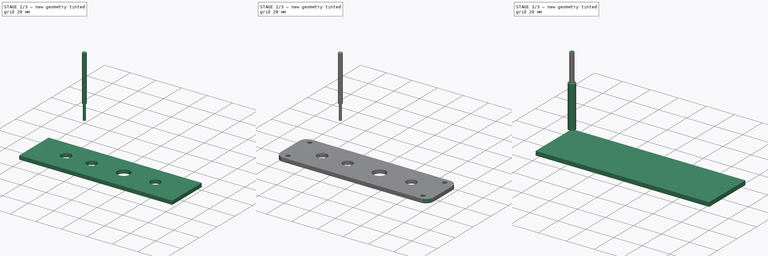
[diagram: build sequence overview — one tinted view per stage of 3, left to right]
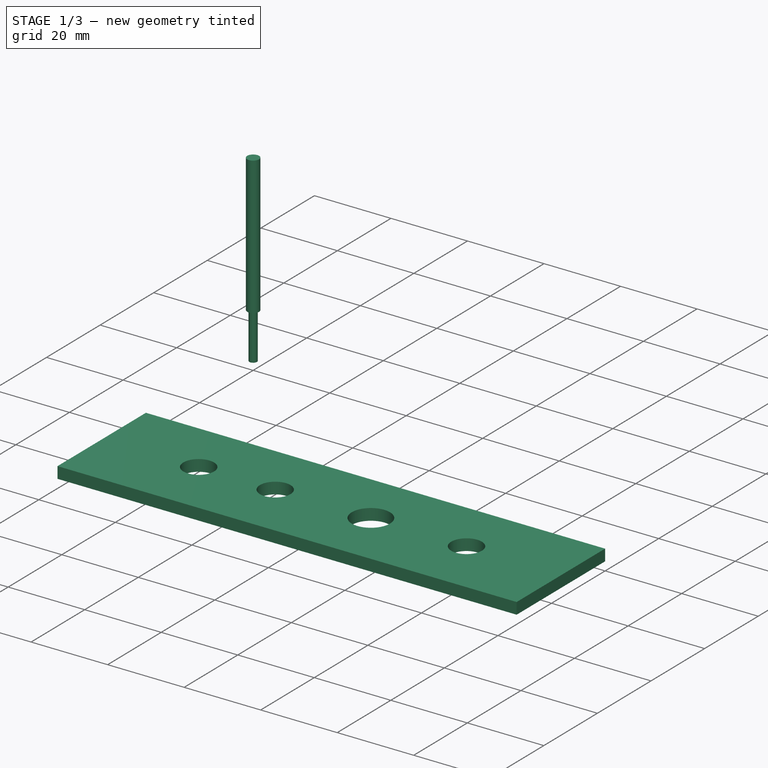
[diagram: stage 1 of 3 — iso view after this stage's code; geometry added in this stage tinted green]
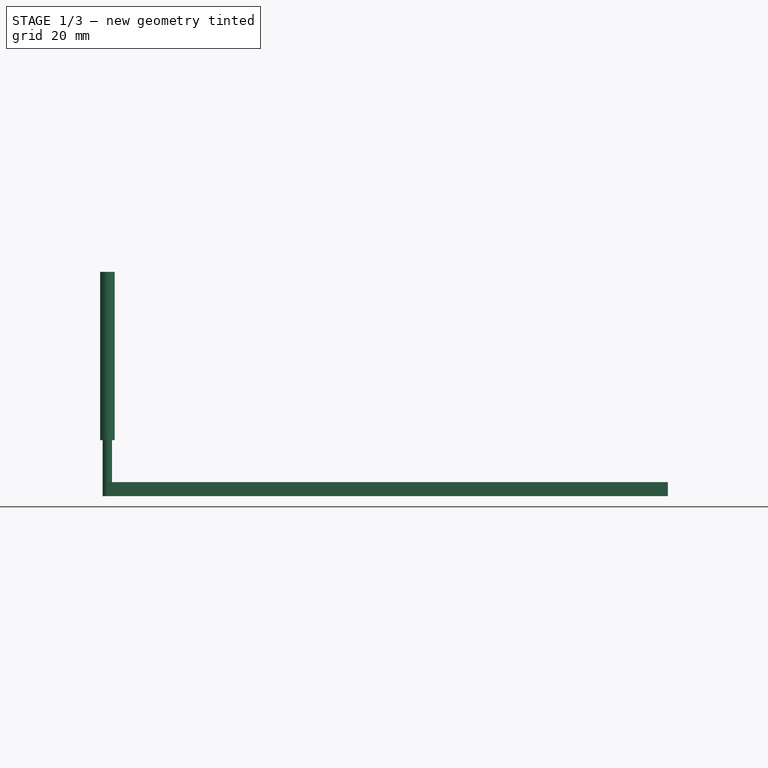
[diagram: stage 1 of 3 — front view after this stage's code; geometry added in this stage tinted green]
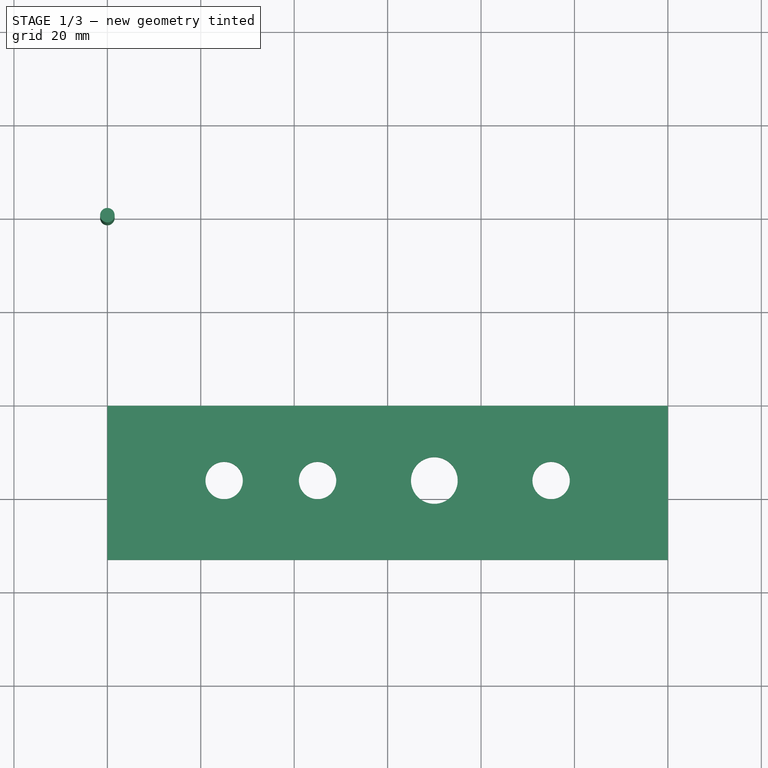
[diagram: stage 1 of 3 — top view after this stage's code; geometry added in this stage tinted green]
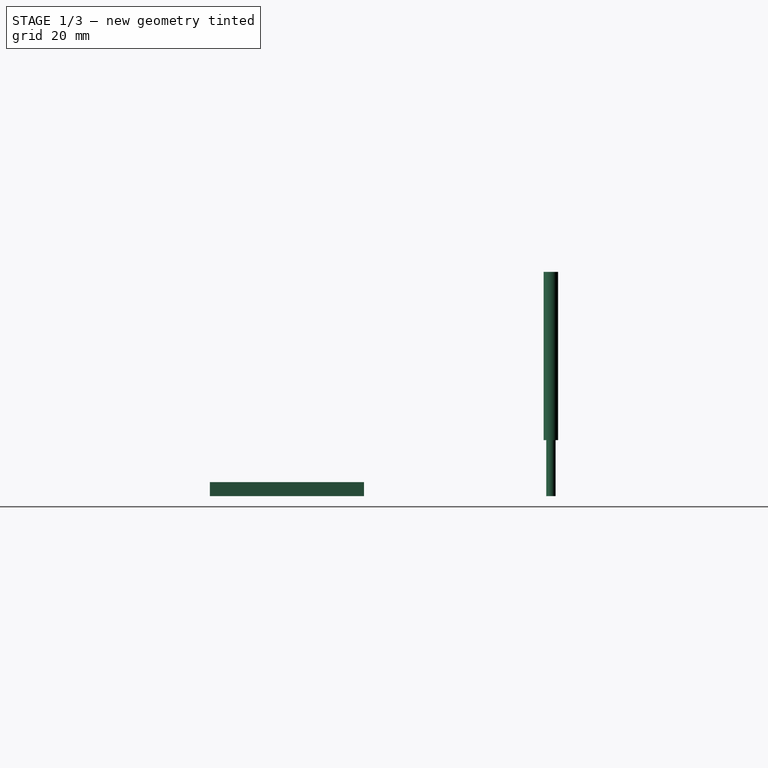
[diagram: stage 1 of 3 — right view after this stage's code; geometry added in this stage tinted green]
FCSTD DOCUMENT  (FreeCAD 0.21R33771 (Git))
Label: IO Platw
License: All rights reserved
LicenseURL: http://en.wikipedia.org/wiki/All_rights_reserved
objects: Path::FeaturePython×5, Part::FeaturePython×4, Sketcher::SketchObject×3, App::DocumentObjectGroup×3, PartDesign::Pocket×2, PartDesign::Pad×1, PartDesign::Fillet×1, PartDesign::Body×1, App::FeaturePython×1
note: 17 computed .brp shape members not serialized (recipe doc carries the construction recipe); baked Part::Feature solids carry a one-line shape summary decoded from their .brp

FEATURE [Sketcher::SketchObject] Sketch
  FullyConstrained = false
  MapMode = 5
  Support = -> [XY_Plane]
  sketch-geometry (4):
    g0: LineSegment StartX=0 StartY=-73.0154 StartZ=0 EndX=120 EndY=-73.0154 EndZ=0
    g1: LineSegment StartX=120 StartY=-73.0154 StartZ=0 EndX=120 EndY=-40.0154 EndZ=0
    g2: LineSegment StartX=120 StartY=-40.0154 StartZ=0 EndX=0 EndY=-40.0154 EndZ=0
    g3: LineSegment StartX=0 StartY=-40.0154 StartZ=0 EndX=0 EndY=-73.0154 EndZ=0
  constraints (11):
    c: Coincident(g0,g1)
    c: Coincident(g1,g2)
    c: Coincident(g2,g3)
    c: Coincident(g3,g0)
    c: Horizontal(g0)
    c: Horizontal(g2)
    c: Vertical(g1)
    c: Vertical(g3)
    c: PointOnObject(g0,g-2)
    c: DistanceX(g2,g2) = 120
    c: DistanceY(g3,g3) = 33
FEATURE [PartDesign::Pad] Pad
  Direction = (0,0,1)
  Length = 3
  Length2 = 10
  Profile = -> Sketch
  ReferenceAxis = -> Sketch [N_Axis]
  Type = 0
FEATURE [Sketcher::SketchObject] Sketch195  label="IO plate jack Holes002"
  FullyConstrained = false
  MapMode = 5
  Placement = pos=(0,0,3) rot=(0,0,1;0rad)
  Support = -> [Pad]
  sketch-geometry (18):
    g0: LineSegment StartX=0.000934 StartY=-56.02 StartZ=0 EndX=10.0009 EndY=-56.02 EndZ=0
    g1: LineSegment StartX=10.0009 StartY=-56.02 StartZ=0 EndX=20.0009 EndY=-56.02 EndZ=0
    g2: LineSegment StartX=30.0009 StartY=-56.02 StartZ=0 EndX=40.0009 EndY=-56.02 EndZ=0
    g3: LineSegment StartX=60.0334 StartY=-56.02 StartZ=0 EndX=50.0009 EndY=-56.02 EndZ=0
    g4: LineSegment StartX=80.0009 StartY=-56.02 StartZ=0 EndX=90.0009 EndY=-56.02 EndZ=0
    g5: LineSegment StartX=100.001 StartY=-56.02 StartZ=0 EndX=109.001 EndY=-56.02 EndZ=0
    g6: Circle CenterX=25.0009 CenterY=-56.02 CenterZ=0 NormalX=0 NormalY=0 NormalZ=1 AngleXU=0 Radius=4
    g7: Circle CenterX=45.0009 CenterY=-56.02 CenterZ=0 NormalX=0 NormalY=0 NormalZ=1 AngleXU=0 Radius=4
    g8: Circle CenterX=70.0009 CenterY=-56.02 CenterZ=0 NormalX=0 NormalY=0 NormalZ=1 AngleXU=0 Radius=5
    g9: Circle CenterX=95.0009 CenterY=-56.02 CenterZ=0 NormalX=0 NormalY=0 NormalZ=1 AngleXU=0 Radius=4
    g10: LineSegment StartX=100.001 StartY=-56.02 StartZ=0 EndX=95.0009 EndY=-56.02 EndZ=0
    g11: LineSegment StartX=95.0009 StartY=-56.02 StartZ=0 EndX=90.0009 EndY=-56.02 EndZ=0
    g12: LineSegment StartX=80.0009 StartY=-56.02 StartZ=0 EndX=70.0009 EndY=-56.02 EndZ=0
    g13: LineSegment StartX=70.0009 StartY=-56.02 StartZ=0 EndX=60.0334 EndY=-56.02 EndZ=0
    g14: LineSegment StartX=50.0009 StartY=-56.02 StartZ=0 EndX=45.0009 EndY=-56.02 EndZ=0
    g15: LineSegment StartX=45.0009 StartY=-56.02 StartZ=0 EndX=40.0009 EndY=-56.02 EndZ=0
    g16: LineSegment StartX=30.0009 StartY=-56.02 StartZ=0 EndX=25.0009 EndY=-56.02 EndZ=0
    g17: LineSegment StartX=25.0009 StartY=-56.02 StartZ=0 EndX=20.0009 EndY=-56.02 EndZ=0
  constraints (49):
    c: Horizontal(g0)
    c: Coincident(g1,g0)
    c: Horizontal(g1)
    c: Horizontal(g2)
    c: Horizontal(g3)
    c: Horizontal(g4)
    c: Horizontal(g5)
    c: Diameter(g9) = 8
    c: Diameter(g6) = 8
    c: Diameter(g7) = 8
    c: Diameter(g8) = 10
    c: DistanceX(g0,g0) = 10
    c: DistanceX(g1,g1) = 10
    c: DistanceX(g2,g2) = 10
    c: DistanceX(g3,g3) = 10.0325
    c: DistanceX(g4,g4) = 10
    c: DistanceX(g5,g5) = 9
    c: Coincident(g10,g5)
    c: Coincident(g10,g9)
    c: Horizontal(g10)
    c: Coincident(g11,g9)
    c: Coincident(g11,g4)
    c: Horizontal(g11)
    c: Coincident(g12,g4)
    c: Coincident(g12,g8)
    c: Horizontal(g12)
    c: Coincident(g13,g8)
    c: Coincident(g13,g3)
    c: Horizontal(g13)
    c: Coincident(g14,g3)
    c: Coincident(g14,g7)
    c: Horizontal(g14)
    c: Coincident(g15,g7)
    c: Coincident(g15,g2)
    c: Horizontal(g15)
    c: Coincident(g16,g2)
    c: Coincident(g16,g6)
    c: Horizontal(g16)
    c: Coincident(g17,g6)
    c: Coincident(g17,g1)
    c: Horizontal(g17)
    c: DistanceX(g17,g17) = 5
    c: DistanceX(g16,g16) = 5
    c: DistanceX(g15,g15) = 5
    c: DistanceX(g14,g14) = 5
    c: DistanceX(g13,g13) = 9.9675
    c: DistanceX(g12,g12) = 10
    c: DistanceX(g11,g11) = 5
    c: DistanceX(g10,g10) = 5
FEATURE [PartDesign::Pocket] Pocket
  BaseFeature = -> Pad
  Direction = (0,0,-1)
  Length = 5
  Length2 = 5
  Profile = -> Sketch195
  ReferenceAxis = -> Sketch195 [N_Axis]
  Type = 0
FEATURE [Part::FeaturePython] ToolBit001  label="2mm_Endmill"  # Path/CAM toolbit (typed FeaturePython)
  BitPropertyNames = Chipload | CuttingEdgeHeight | Diameter | Flutes | Length | Material | ShankDiameter | SpindleDirection
  BitShape = C:/Program Files/FreeCAD 0.21/Mod\Path\Tools\Shape\endmill.fcstd
  Chipload = 0
  CuttingEdgeHeight = 12
  Diameter = 2
  File = <userpath>/AppData/Roaming/FreeCAD/Macro/Bit/2mm_Endmill.fctb
  Flutes = 0
  Length = 48
  Material = 0
  ShankDiameter = 3.1
  ShapeName = endmill
  SpindleDirection = 0
FEATURE [Path::FeaturePython] _mm_Endmill  label="2mm_Endmill001"  # Path/CAM operation (typed FeaturePython)
  HorizFeed = 2.83333
  HorizRapid = 0
  SpindleDir = 0
  SpindleSpeed = 10000
  Tool = -> ToolBit001
  ToolNumber = 2
  VertFeed = 2
  VertRapid = 0
  expr: HorizRapid = SetupSheet.HorizRapid
  expr: VertRapid = SetupSheet.VertRapid
FEATURE [App::DocumentObjectGroup] Tools
  Group = -> [TC__Default_Tool,_mm_Endmill]
FEATURE [Path::FeaturePython] Helix  # Path/CAM operation (typed FeaturePython)
  Active = true
  Base = -> [Clone]
  ClearanceHeight = 5
  CoolantMode = 0
  CycleTime = 00:03:50
  Direction = 0
  FinalDepth = -3
  OffsetExtra = 0
  OpFinalDepth = -3
  OpStartDepth = 0
  OpStockZMax = 0
  OpStockZMin = -3
  OpToolDiameter = 2
  SafeHeight = 3
  StartDepth = 0
  StartRadius = 0
  StartSide = 0
  StepDown = 2
  StepOver = 50
  ToolController = -> _mm_Endmill
  expr: ClearanceHeight = OpStockZMax + SetupSheet.ClearanceHeightOffset
  expr: FinalDepth = OpFinalDepth
  expr: SafeHeight = OpStockZMax + SetupSheet.SafeHeightOffset
  expr: StartDepth = OpStartDepth
  expr: StepDown = OpToolDiameter
FEATURE [Path::FeaturePython] Profile  # Path/CAM operation (typed FeaturePython)
  Active = true
  AreaParams:
    Tolerance = 1e-07
    FitArcs = True
    Simplify = False
    CleanDistance = 0.0
    Accuracy = 0.01
    Unit = 1.0
    MinArcPoints = 4
    MaxArcPoints = 100
    ClipperScale = 10000000.0
    Fill = 0
    Coplanar = 0
    Reorient = True
    Outline = False
    Explode = False
    OpenMode = 0
    Deflection = 0.01
    SubjectFill = 0
    ClipFill = 0
    Offset = 1.0
    ExtraPass = 0
    Stepover = 0.0
    LastStepover = 0.0
    JoinType = 0
    EndType = 0
    MiterLimit = 2.0
    RoundPrecision = 0.0
    PocketMode = 0
    ToolRadius = 1.0
    PocketExtraOffset = 0.0
    PocketStepover = 0.0
    PocketLastStepover = 0.0
    FromCenter = False
    Angle = 45.0
    AngleShift = 0.0
    Shift = 0.0
    Thicken = False
    SectionCount = -1
    Stepdown = 1.0
    SectionOffset = 0.0
    SectionTolerance = 1e-07
    SectionMode = 2
    Project = False
  Base = -> [Clone]
  ClearanceHeight = 5
  CoolantMode = 0
  CycleTime = 00:04:20
  Direction = 0
  FinalDepth = -3
  HandleMultipleFeatures = 0
  JoinType = 0
  MiterLimit = 0.1
  OffsetExtra = 0
  OpFinalDepth = -3
  OpStartDepth = 0
  OpStockZMax = 0
  OpStockZMin = -3
  OpToolDiameter = 2
  PathParams = {'orientation': 1, 'feedrate': 2.8333333333333335, 'feedrate_v': 2.0, 'verbose': True, 'resume_height': 3.0, 'retraction': 5.0, 'return_end': True, 'preamble': False}
  SafeHeight = 3
  Side = 0
  SplitArcs = false
  StartDepth = 0
  StartPoint = (0,0,0)
  StepDown = 2
  ToolController = -> _mm_Endmill
  UseComp = true
  UseStartPoint = false
  processCircles = false
  processHoles = false
  processPerimeter = true
  expr: ClearanceHeight = OpStockZMax + SetupSheet.ClearanceHeightOffset
  expr: FinalDepth = OpFinalDepth
  expr: SafeHeight = OpStockZMax + SetupSheet.SafeHeightOffset
  expr: StartDepth = OpStartDepth
  expr: StepDown = OpToolDiameter
FEATURE [App::DocumentObjectGroup] Operations
  Group = -> [Helix,Profile]
FEATURE [Path::FeaturePython] Job  # Path/CAM operation (typed FeaturePython)
  CycleTime = 00:08:10
  Fixtures = G54
  GeometryTolerance = 0.01
  JobType = 0
  LastPostProcessDate = 2024-12-17 11:59:33.107010
  LastPostProcessOutput = <userpath>\OneDrive\Github-projects\ElectricGuitarMK1\Research and Development\Body design\body Components Tool Paths\IO Platw.nc
  Model = -> Model
  Operations = -> Operations
  OrderOutputBy = 0
  PostProcessor = 1
  SetupSheet = -> SetupSheet
  SplitOutput = false
  Stock = -> Stock
  Tools = -> Tools
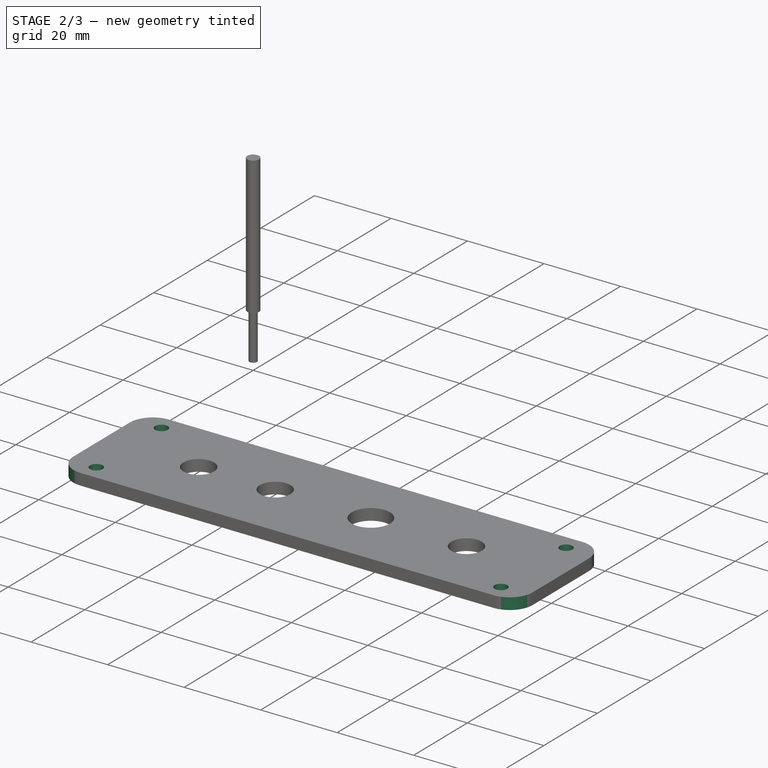
[diagram: stage 2 of 3 — iso view after this stage's code; geometry added in this stage tinted green]
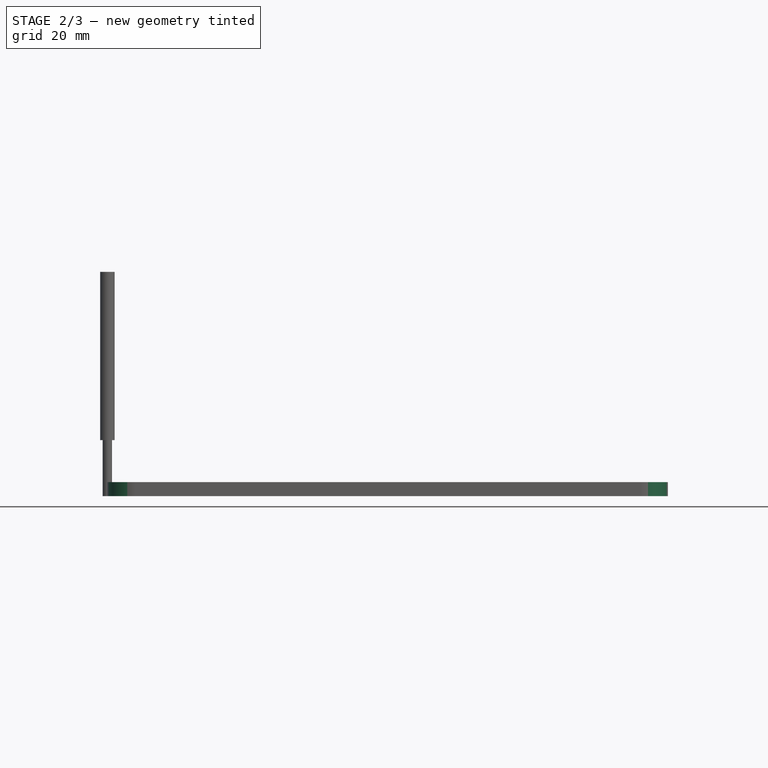
[diagram: stage 2 of 3 — front view after this stage's code; geometry added in this stage tinted green]
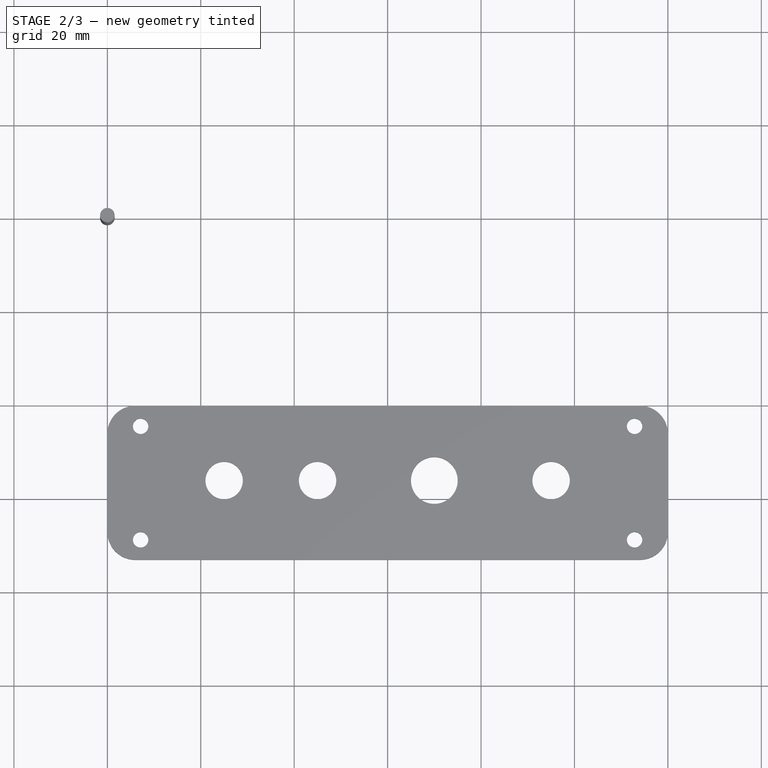
[diagram: stage 2 of 3 — top view after this stage's code; geometry added in this stage tinted green]
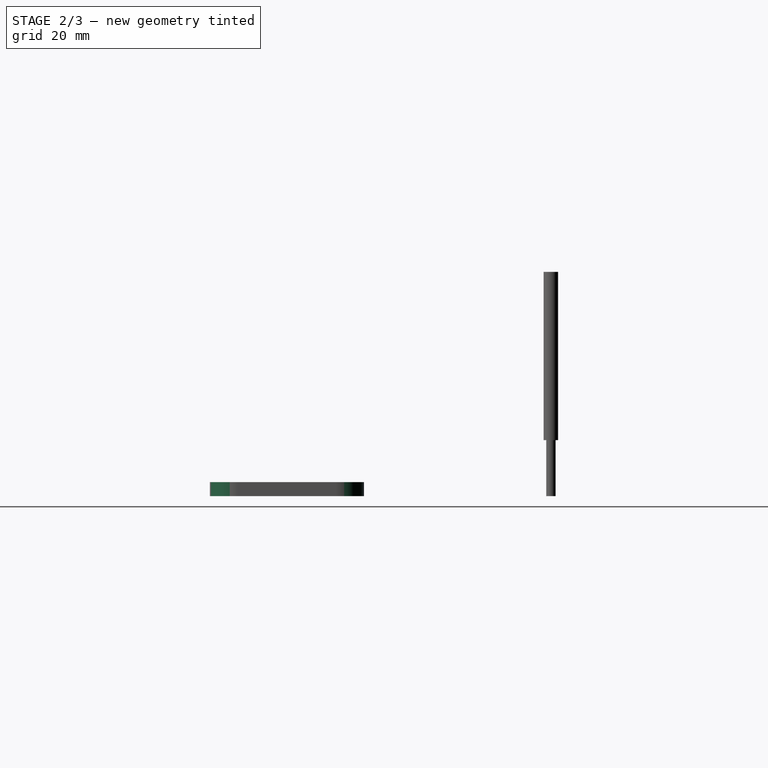
[diagram: stage 2 of 3 — right view after this stage's code; geometry added in this stage tinted green]
FEATURE [Sketcher::SketchObject] Sketch196
  FullyConstrained = false
  MapMode = 5
  Placement = pos=(0,0,3) rot=(0,0,1;0rad)
  Support = -> [Pocket]
  sketch-geometry (11):
    g0: LineSegment StartX=12.475 StartY=-47.0154 StartZ=0 EndX=7.125 EndY=-44.4154 EndZ=0
    g1: Circle CenterX=7.125 CenterY=-44.4154 CenterZ=0 NormalX=0 NormalY=0 NormalZ=1 AngleXU=0 Radius=1.65
    g2: LineSegment StartX=7.125 StartY=-44.4154 StartZ=0 EndX=7.125 EndY=-68.7131 EndZ=0
    g3: LineSegment StartX=7.125 StartY=-44.4154 StartZ=0 EndX=112.875 EndY=-44.4154 EndZ=0
    g4: LineSegment StartX=112.875 StartY=-44.4154 StartZ=0 EndX=112.875 EndY=-73.0154 EndZ=0
    g5: LineSegment StartX=7.125 StartY=-68.7131 StartZ=0 EndX=112.875 EndY=-68.7131 EndZ=0
    g6: Circle CenterX=112.875 CenterY=-68.7131 CenterZ=0 NormalX=0 NormalY=0 NormalZ=1 AngleXU=0 Radius=1.65
    g7: Circle CenterX=112.875 CenterY=-44.4154 CenterZ=0 NormalX=0 NormalY=0 NormalZ=1 AngleXU=0 Radius=1.65
    g8: Circle CenterX=7.125 CenterY=-68.7131 CenterZ=0 NormalX=0 NormalY=0 NormalZ=1 AngleXU=0 Radius=1.65
    g9: LineSegment StartX=7.125 StartY=-44.4154 StartZ=0 EndX=7.125 EndY=-40.0154 EndZ=0
    g10: LineSegment StartX=120 StartY=-40 StartZ=0 EndX=60 EndY=-40 EndZ=0
  constraints (26):
    c: Coincident(g1,g0)
    c: Coincident(g2,g0)
    c: Vertical(g2)
    c: Coincident(g3,g0)
    c: Horizontal(g3)
    c: Coincident(g4,g3)
    c: Vertical(g4)
    c: Coincident(g5,g2)
    c: PointOnObject(g5,g4)
    c: Horizontal(g5)
    c: Coincident(g6,g5)
    c: Coincident(g7,g3)
    c: Coincident(g8,g2)
    c: Equal(g1,g8)
    c: Equal(g1,g7)
    c: Equal(g1,g6)
    c: Diameter(g1) = 3.3
    c: DistanceX(g3,g3) = 105.75
    c: DistanceY(g4,g4) = 28.6
    c: DistanceY(g2,g2) = 24.2976
    c: Distance(g0) = 5.94832
    c: Angle(g0,g3) = 0.45237
    c: Coincident(g9,g1)
    c: Vertical(g9)
    c: DistanceY(g9,g9) = 4.4
    c: Horizontal(g10)
FEATURE [PartDesign::Pocket] Pocket137
  BaseFeature = -> Pocket
  Direction = (0,0,-1)
  Length = 5
  Length2 = 5
  Profile = -> Sketch196
  ReferenceAxis = -> Sketch196 [N_Axis]
  Type = 0
FEATURE [PartDesign::Fillet] Fillet
  Base = -> Pocket137 [Edge1,Edge5,Edge2,Edge8]
  BaseFeature = -> Pocket137
  Radius = 6
  SupportTransform = false
  UseAllEdges = false
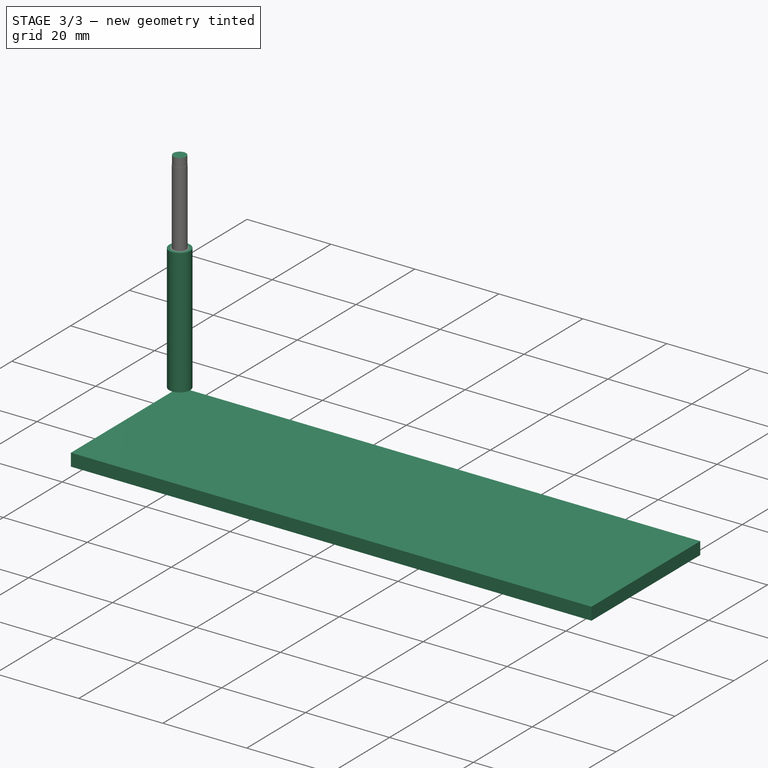
[diagram: stage 3 of 3 — iso view after this stage's code; geometry added in this stage tinted green]
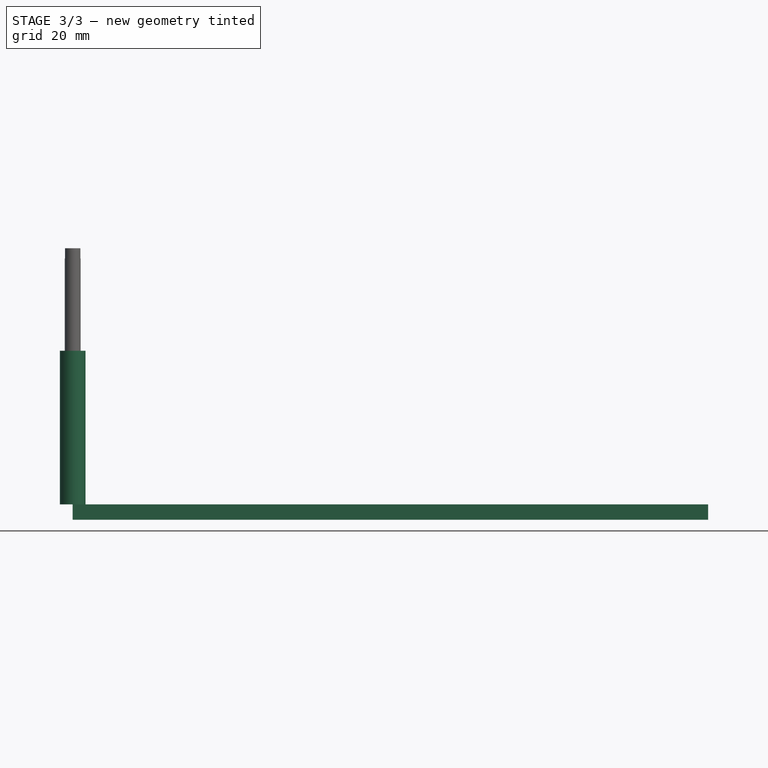
[diagram: stage 3 of 3 — front view after this stage's code; geometry added in this stage tinted green]
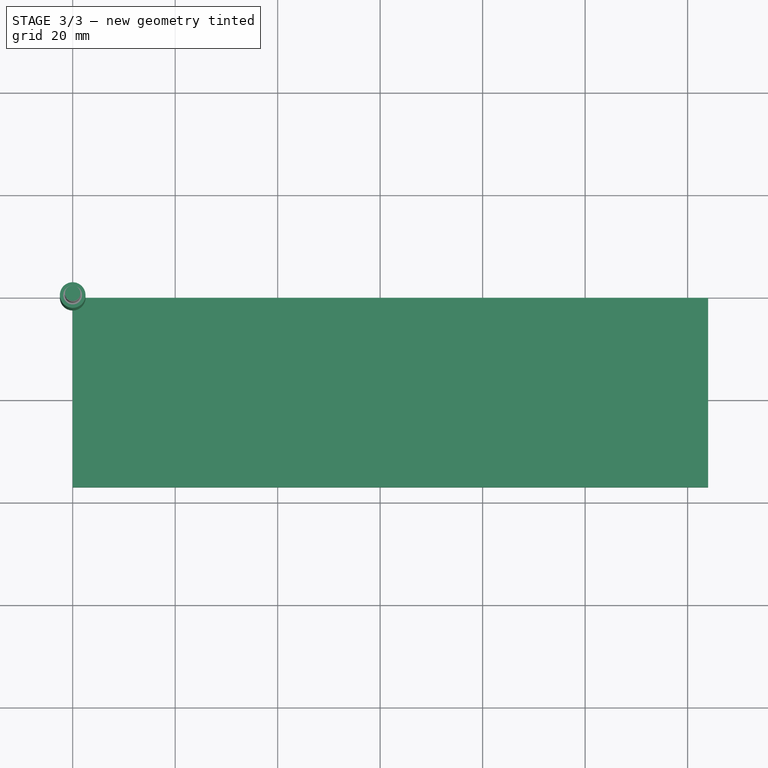
[diagram: stage 3 of 3 — top view after this stage's code; geometry added in this stage tinted green]
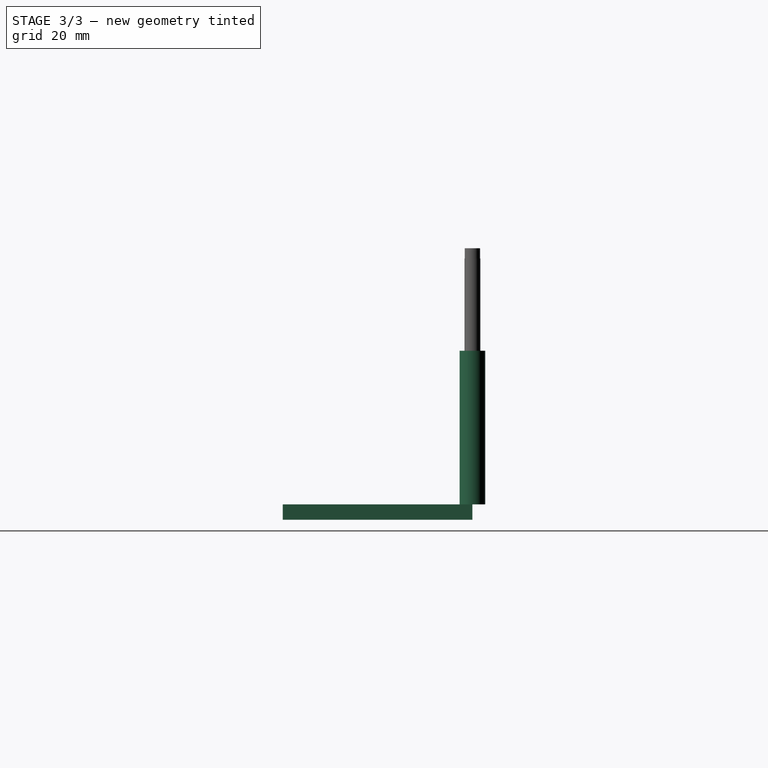
[diagram: stage 3 of 3 — right view after this stage's code; geometry added in this stage tinted green]
FEATURE [PartDesign::Body] Body
  Group = -> [Sketch,Pad,Sketch195,Pocket,Sketch196,Pocket137,Fillet]
  Origin = -> Origin
  Tip = -> Fillet
FEATURE [App::FeaturePython] SetupSheet  # Path/CAM operation (typed FeaturePython)
  ClearanceHeightExpression = OpStockZMax+SetupSheet.ClearanceHeightOffset
  ClearanceHeightOffset = 5
  CoolantMode = 0
  CoolantModes = None | Flood | Mist
  FinalDepthExpression = OpFinalDepth
  HorizRapid = 0
  SafeHeightExpression = OpStockZMax+SetupSheet.SafeHeightOffset
  SafeHeightOffset = 3
  StartDepthExpression = OpStartDepth
  StepDownExpression = OpToolDiameter
  VertRapid = 0
FEATURE [Part::FeaturePython] Clone  label="Model-Body"  # Draft clone (typed FeaturePython)
  AttacherType = Attacher::AttachEngine3D
  Fuse = false
  Objects = -> [Body]
  PathResource = Model
  Placement = pos=(2,38.0154,-3) rot=(0,0,1;0rad)
  Scale = (1,1,1)
FEATURE [App::DocumentObjectGroup] Model
  Group = -> [Clone]
FEATURE [Part::FeaturePython] ToolBit  label="Endmill"  # Path/CAM toolbit (typed FeaturePython)
  BitPropertyNames = Chipload | CuttingEdgeHeight | Diameter | Flutes | Length | Material | ShankDiameter | SpindleDirection
  BitShape = C:/Program Files/FreeCAD 0.21/Mod\Path\Tools\Shape\endmill.fcstd
  Chipload = 0
  CuttingEdgeHeight = 30
  Diameter = 5
  Flutes = 0
  Length = 50
  Material = 0
  ShankDiameter = 3
  ShapeName = endmill
  SpindleDirection = 0
FEATURE [Path::FeaturePython] TC__Default_Tool  label="TC: Default Tool"  # Path/CAM operation (typed FeaturePython)
  HorizFeed = 0
  HorizRapid = 0
  SpindleDir = 0
  SpindleSpeed = 0
  Tool = -> ToolBit
  ToolNumber = 1
  VertFeed = 0
  VertRapid = 0
  expr: HorizRapid = SetupSheet.HorizRapid
  expr: VertRapid = SetupSheet.VertRapid
FEATURE [Part::FeaturePython] Stock  # WARN: FeaturePython — macro-defined, semantics opaque (R4)
  Base = -> Model
  ExtXneg = 2
  ExtXpos = 2
  ExtYneg = 2
  ExtYpos = 2
  ExtZneg = 0
  ExtZpos = 0
  Placement = pos=(2,-35,-3) rot=(0,0,1;0rad)
  StockType = FromBase
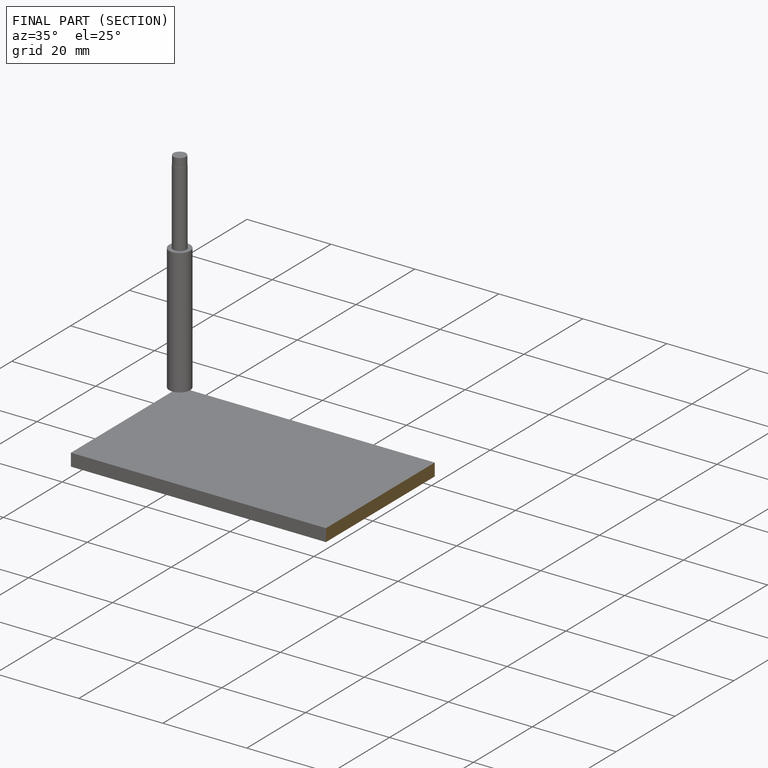
[diagram: finished part — half-section view (interior)]
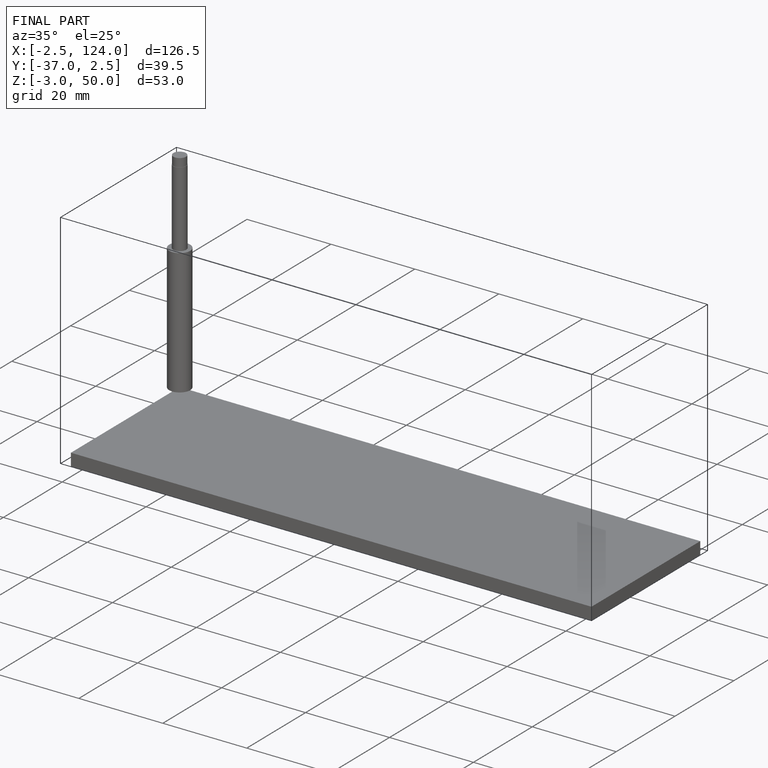
[diagram: finished part — iso view with bounding-box wireframe]
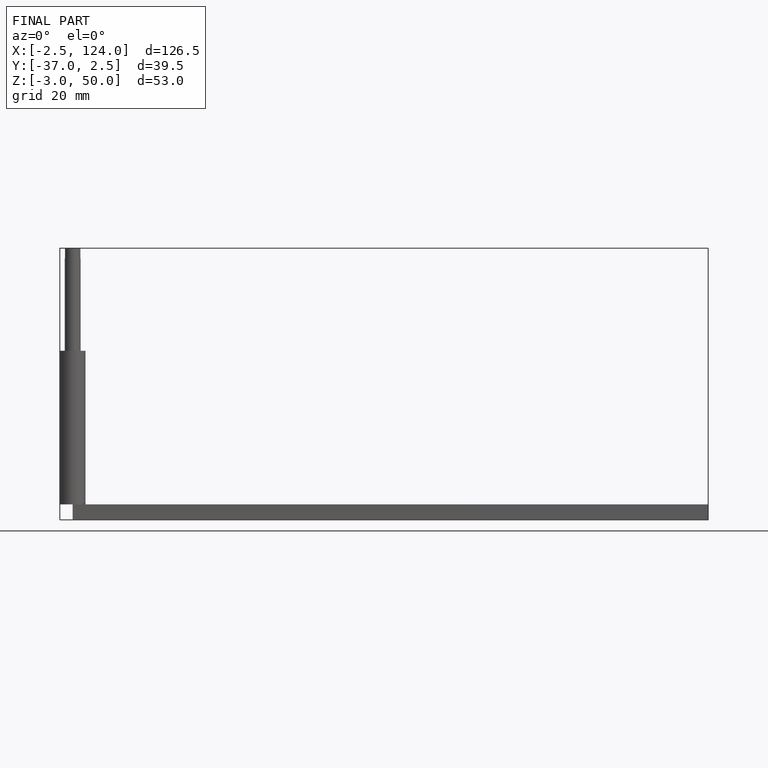
[diagram: finished part — front view with bounding-box wireframe]
